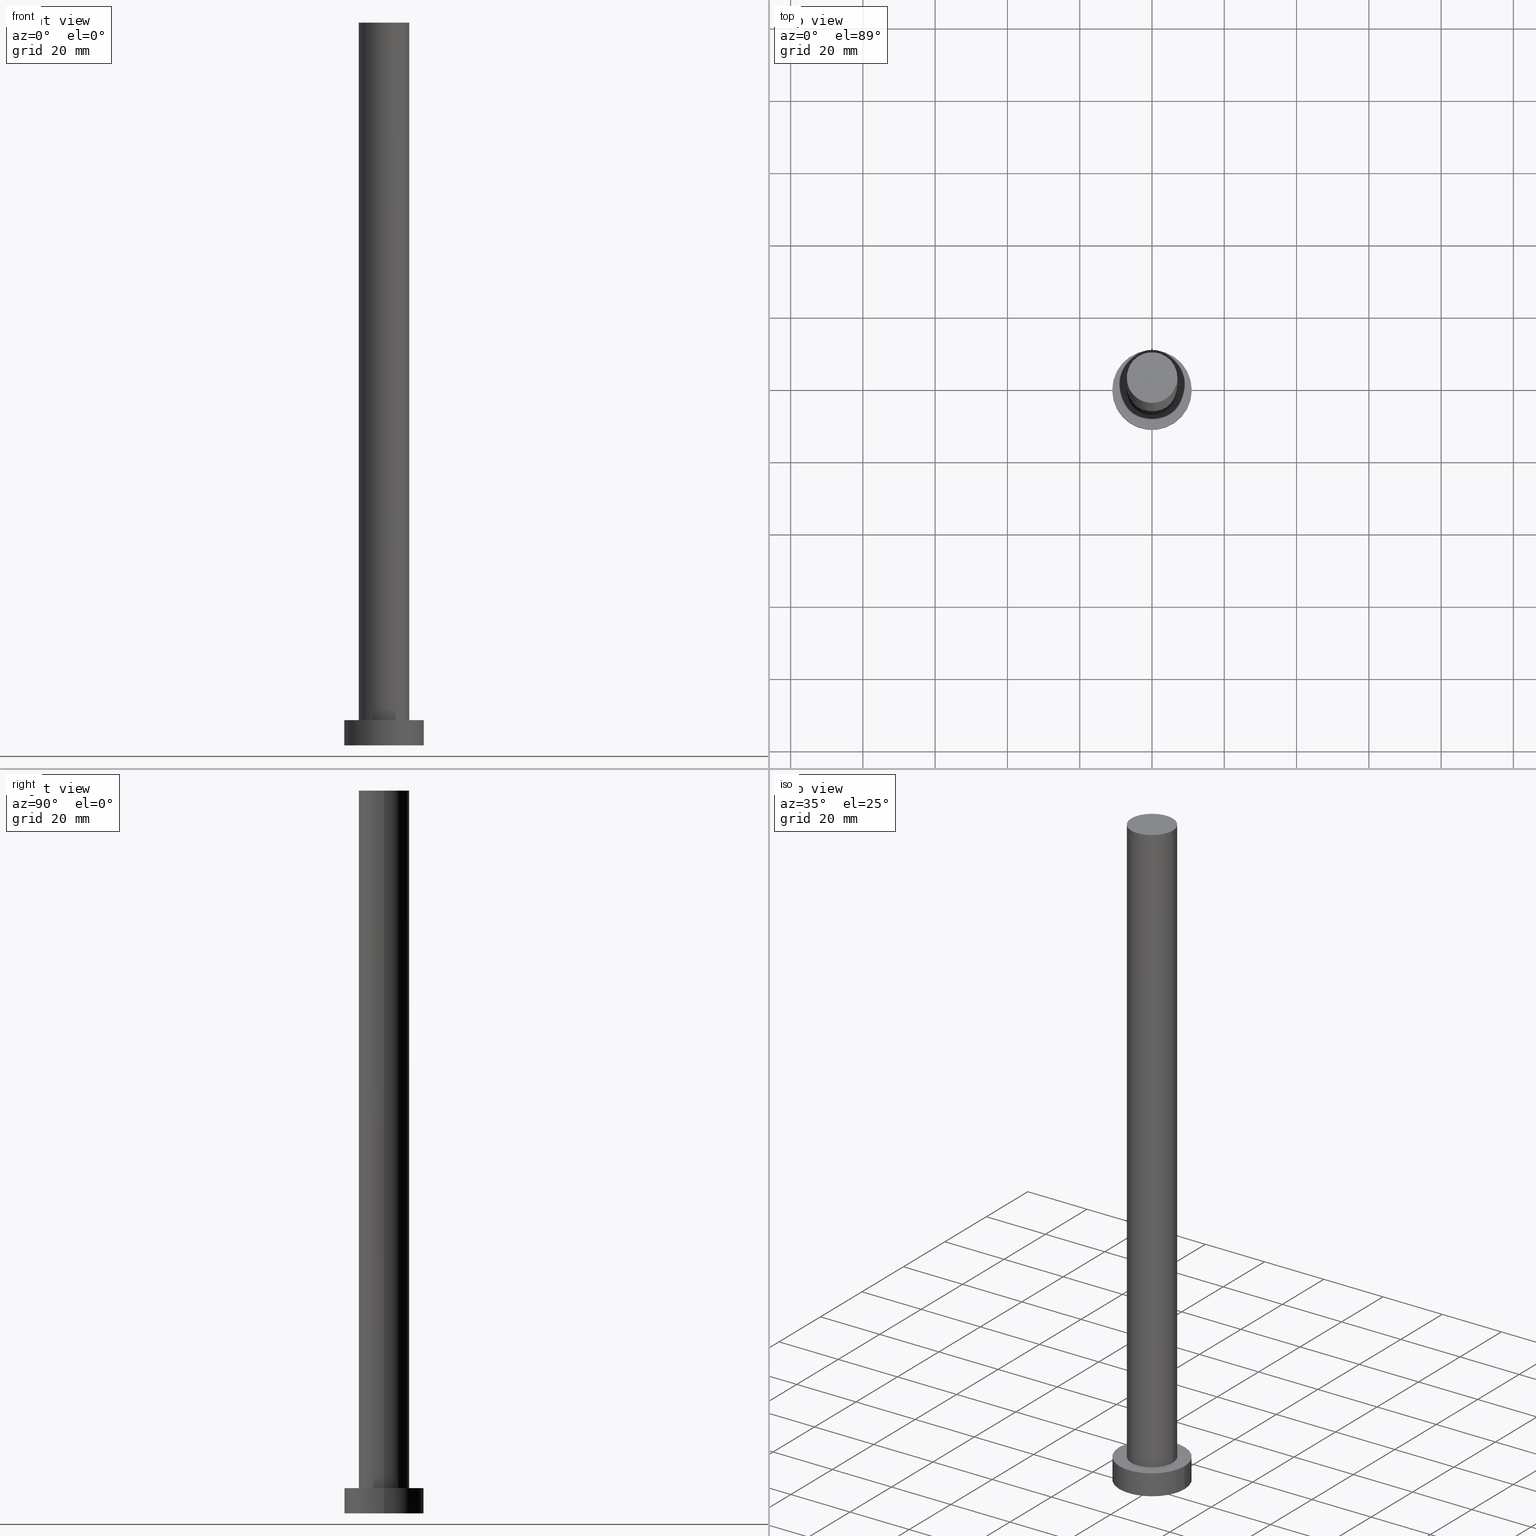
[diagram: canonical four-view strip — front | top / right | iso, engineering-drawing reading convention]
A machine part, canonical four-view strip (front | top / right | iso — engineering-drawing reading convention). The complete STEP part file that produces these views, byte-faithful:
ISO-10303-21;
HEADER;
FILE_DESCRIPTION (( 'STEP AP203' ),
    '1' );
FILE_NAME ('1ea0.STEP',
    '2023-02-13T08:55:14',
    ( '' ),
    ( '' ),
    'SwSTEP 2.0',
    'SolidWorks 2019',
    '' );
FILE_SCHEMA (( 'CONFIG_CONTROL_DESIGN' ));
ENDSEC;

DATA;
#1 = PERSON_AND_ORGANIZATION ( #171, #117 ) ;
#2 = VERTEX_POINT ( 'NONE', #188 ) ;
#3 = CIRCLE ( 'NONE', #31, 11.00000000000000000 ) ;
#4 = ORIENTED_EDGE ( 'NONE', *, *, #245, .F. ) ;
#5 = EDGE_CURVE ( 'NONE', #197, #104, #47, .T. ) ;
#6 = CARTESIAN_POINT ( 'NONE',  ( 0.000000000000000000, 0.000000000000000000, 7.000000000000000000 ) ) ;
#7 = CC_DESIGN_PERSON_AND_ORGANIZATION_ASSIGNMENT ( #73, #228, ( #252 ) ) ;
#8 = APPROVAL_PERSON_ORGANIZATION ( #56, #62, #217 ) ;
#9 = DIRECTION ( 'NONE',  ( 0.000000000000000000, 0.000000000000000000, 1.000000000000000000 ) ) ;
#10 = AXIS2_PLACEMENT_3D ( 'NONE', #180, #41, #122 ) ;
#11 = MECHANICAL_CONTEXT ( 'NONE', #202, 'mechanical' ) ;
#12 = APPROVAL_STATUS ( 'not_yet_approved' ) ;
#13 = DIRECTION ( 'NONE',  ( 0.000000000000000000, 0.000000000000000000, 1.000000000000000000 ) ) ;
#14 = AXIS2_PLACEMENT_3D ( 'NONE', #135, #9, #244 ) ;
#15 = VECTOR ( 'NONE', #215, 1000.000000000000000 ) ;
#16 = ADVANCED_FACE ( 'NONE', ( #187 ), #142, .T. ) ;
#17 = ORIENTED_EDGE ( 'NONE', *, *, #212, .F. ) ;
#18 = LOCAL_TIME ( 9, 55, 14.00000000000000000, #162 ) ;
#19 = ORIENTED_EDGE ( 'NONE', *, *, #5, .T. ) ;
#20 = APPROVAL_STATUS ( 'not_yet_approved' ) ;
#21 = AXIS2_PLACEMENT_3D ( 'NONE', #211, #225, #223 ) ;
#22 = PERSON_AND_ORGANIZATION ( #171, #117 ) ;
#23 = CARTESIAN_POINT ( 'NONE',  ( 7.000000000000000888, 8.572527594031474176E-16, 7.000000000000000000 ) ) ;
#24 = PLANE ( 'NONE',  #233 ) ;
#25 = UNCERTAINTY_MEASURE_WITH_UNIT (LENGTH_MEASURE( 1.000000000000000082E-05 ), #172, 'distance_accuracy_value', 'NONE');
#26 = CARTESIAN_POINT ( 'NONE',  ( 0.000000000000000000, 0.000000000000000000, 0.000000000000000000 ) ) ;
#27 = ADVANCED_FACE ( 'NONE', ( #64 ), #242, .F. ) ;
#28 = DATE_AND_TIME ( #210, #243 ) ;
#29 = FACE_OUTER_BOUND ( 'NONE', #139, .T. ) ;
#30 = LINE ( 'NONE', #52, #15 ) ;
#31 = AXIS2_PLACEMENT_3D ( 'NONE', #26, #143, #141 ) ;
#32 = CARTESIAN_POINT ( 'NONE',  ( 0.000000000000000000, 0.000000000000000000, 0.000000000000000000 ) ) ;
#33 = COORDINATED_UNIVERSAL_TIME_OFFSET ( 1, 0, .AHEAD. ) ;
#34 = DIRECTION ( 'NONE',  ( 1.000000000000000000, 0.000000000000000000, 0.000000000000000000 ) ) ;
#35 = AXIS2_PLACEMENT_3D ( 'NONE', #114, #13, #94 ) ;
#36 = EDGE_CURVE ( 'NONE', #232, #104, #3, .T. ) ;
#37 = CC_DESIGN_APPROVAL ( #214, ( #252 ) ) ;
#38 = CARTESIAN_POINT ( 'NONE',  ( 0.000000000000000000, 0.000000000000000000, 7.000000000000000000 ) ) ;
#39 = DIRECTION ( 'NONE',  ( 0.000000000000000000, 0.000000000000000000, 1.000000000000000000 ) ) ;
#40 = VERTEX_POINT ( 'NONE', #23 ) ;
#41 = DIRECTION ( 'NONE',  ( -0.000000000000000000, -0.000000000000000000, -1.000000000000000000 ) ) ;
#42 = ORIENTED_EDGE ( 'NONE', *, *, #127, .T. ) ;
#43 = COORDINATED_UNIVERSAL_TIME_OFFSET ( 1, 0, .AHEAD. ) ;
#44 = APPROVAL_DATE_TIME ( #28, #62 ) ;
#45 = CARTESIAN_POINT ( 'NONE',  ( 0.000000000000000000, 0.000000000000000000, 0.000000000000000000 ) ) ;
#46 = MANIFOLD_SOLID_BREP ( 'P�idat vysunut�m3', #111 ) ;
#47 = LINE ( 'NONE', #254, #96 ) ;
#48 = DESIGN_CONTEXT ( 'detailed design', #170, 'design' ) ;
#49 = ORIENTED_EDGE ( 'NONE', *, *, #229, .T. ) ;
#50 = DATE_TIME_ROLE ( 'classification_date' ) ;
#51 = LINE ( 'NONE', #194, #178 ) ;
#52 = CARTESIAN_POINT ( 'NONE',  ( 7.000000000000000888, 8.572527594031474176E-16, 200.0000000000000000 ) ) ;
#53 = DIRECTION ( 'NONE',  ( 0.000000000000000000, 0.000000000000000000, 1.000000000000000000 ) ) ;
#54 = DIRECTION ( 'NONE',  ( 0.000000000000000000, 0.000000000000000000, 1.000000000000000000 ) ) ;
#55 = CIRCLE ( 'NONE', #87, 11.00000000000000000 ) ;
#56 = PERSON_AND_ORGANIZATION ( #171, #117 ) ;
#57 = DATE_AND_TIME ( #154, #201 ) ;
#58 = APPROVAL_PERSON_ORGANIZATION ( #105, #71, #189 ) ;
#59 = ORIENTED_EDGE ( 'NONE', *, *, #181, .F. ) ;
#60 = ORIENTED_EDGE ( 'NONE', *, *, #36, .F. ) ;
#61 = FACE_OUTER_BOUND ( 'NONE', #199, .T. ) ;
#62 = APPROVAL ( #132, 'NEUR�EN�' ) ;
#63 = DATE_AND_TIME ( #102, #91 ) ;
#64 = FACE_OUTER_BOUND ( 'NONE', #108, .T. ) ;
#65 = ORIENTED_EDGE ( 'NONE', *, *, #81, .T. ) ;
#66 = PERSON_AND_ORGANIZATION_ROLE ( 'classification_officer' ) ;
#67 = CARTESIAN_POINT ( 'NONE',  ( 0.000000000000000000, 0.000000000000000000, 7.000000000000000000 ) ) ;
#68 = CARTESIAN_POINT ( 'NONE',  ( 11.00000000000000000, 1.347111479062088405E-15, 0.000000000000000000 ) ) ;
#69 = DIRECTION ( 'NONE',  ( 0.000000000000000000, 0.000000000000000000, 1.000000000000000000 ) ) ;
#70 = FACE_OUTER_BOUND ( 'NONE', #253, .T. ) ;
#71 = APPROVAL ( #20, 'NEUR�EN�' ) ;
#72 = CARTESIAN_POINT ( 'NONE',  ( -11.00000000000000000, 0.000000000000000000, 7.000000000000000000 ) ) ;
#73 = PERSON_AND_ORGANIZATION ( #171, #117 ) ;
#74 = COORDINATED_UNIVERSAL_TIME_OFFSET ( 1, 0, .AHEAD. ) ;
#75 = APPLICATION_PROTOCOL_DEFINITION ( 'international standard', 'config_control_design', 1994, #202 ) ;
#76 = CARTESIAN_POINT ( 'NONE',  ( 0.000000000000000000, 0.000000000000000000, 7.000000000000000000 ) ) ;
#77 = DATE_TIME_ROLE ( 'creation_date' ) ;
#78 = CIRCLE ( 'NONE', #226, 11.00000000000000000 ) ;
#79 = CARTESIAN_POINT ( 'NONE',  ( -11.00000000000000000, 0.000000000000000000, 7.000000000000000000 ) ) ;
#80 = CIRCLE ( 'NONE', #95, 7.000000000000000888 ) ;
#81 = EDGE_CURVE ( 'NONE', #40, #88, #158, .T. ) ;
#82 = ORIENTED_EDGE ( 'NONE', *, *, #120, .T. ) ;
#83 = CIRCLE ( 'NONE', #169, 7.000000000000000888 ) ;
#84 = SHAPE_DEFINITION_REPRESENTATION ( #235, #99 ) ;
#85 = ORIENTED_EDGE ( 'NONE', *, *, #36, .T. ) ;
#86 = ORIENTED_EDGE ( 'NONE', *, *, #155, .T. ) ;
#87 = AXIS2_PLACEMENT_3D ( 'NONE', #32, #112, #93 ) ;
#88 = VERTEX_POINT ( 'NONE', #106 ) ;
#89 = DIRECTION ( 'NONE',  ( -0.000000000000000000, -0.000000000000000000, -1.000000000000000000 ) ) ;
#90 = CC_DESIGN_APPROVAL ( #71, ( #136 ) ) ;
#91 = LOCAL_TIME ( 9, 55, 14.00000000000000000, #107 ) ;
#92 = DIRECTION ( 'NONE',  ( -0.000000000000000000, -0.000000000000000000, -1.000000000000000000 ) ) ;
#93 = DIRECTION ( 'NONE',  ( 1.000000000000000000, 0.000000000000000000, 0.000000000000000000 ) ) ;
#94 = DIRECTION ( 'NONE',  ( 1.000000000000000000, 0.000000000000000000, -0.000000000000000000 ) ) ;
#95 = AXIS2_PLACEMENT_3D ( 'NONE', #168, #131, #129 ) ;
#96 = VECTOR ( 'NONE', #161, 1000.000000000000000 ) ;
#97 = CYLINDRICAL_SURFACE ( 'NONE', #163, 7.000000000000000888 ) ;
#98 = ORIENTED_EDGE ( 'NONE', *, *, #181, .T. ) ;
#99 = ADVANCED_BREP_SHAPE_REPRESENTATION ( '1ea0', ( #46, #14 ), #249 ) ;
#100 = ORIENTED_EDGE ( 'NONE', *, *, #134, .T. ) ;
#101 = PRODUCT ( '1ea0', '1ea0', '', ( #11 ) ) ;
#102 = CALENDAR_DATE ( 2023, 13, 2 ) ;
#103 = VERTEX_POINT ( 'NONE', #190 ) ;
#104 = VERTEX_POINT ( 'NONE', #68 ) ;
#105 = PERSON_AND_ORGANIZATION ( #171, #117 ) ;
#106 = CARTESIAN_POINT ( 'NONE',  ( -7.000000000000000888, 0.000000000000000000, 7.000000000000000000 ) ) ;
#107 = COORDINATED_UNIVERSAL_TIME_OFFSET ( 1, 0, .AHEAD. ) ;
#108 = EDGE_LOOP ( 'NONE', ( #60, #147 ) ) ;
#109 = ADVANCED_FACE ( 'NONE', ( #29 ), #192, .T. ) ;
#110 =( NAMED_UNIT ( * ) SI_UNIT ( $, .STERADIAN. ) SOLID_ANGLE_UNIT ( ) );
#111 = CLOSED_SHELL ( 'NONE', ( #164, #16, #109, #241, #27, #130, #204 ) ) ;
#112 = DIRECTION ( 'NONE',  ( 0.000000000000000000, 0.000000000000000000, 1.000000000000000000 ) ) ;
#113 = DATE_AND_TIME ( #195, #166 ) ;
#114 = CARTESIAN_POINT ( 'NONE',  ( 0.000000000000000000, 0.000000000000000000, 7.000000000000000000 ) ) ;
#115 = CIRCLE ( 'NONE', #251, 7.000000000000000888 ) ;
#116 =( NAMED_UNIT ( * ) PLANE_ANGLE_UNIT ( ) SI_UNIT ( $, .RADIAN. ) );
#117 = ORGANIZATION ( 'NEUR�EN�', 'NEUR�EN�', '' ) ;
#118 = FACE_BOUND ( 'NONE', #239, .T. ) ;
#119 = CC_DESIGN_PERSON_AND_ORGANIZATION_ASSIGNMENT ( #144, #66, ( #136 ) ) ;
#120 = EDGE_CURVE ( 'NONE', #103, #2, #83, .T. ) ;
#121 = ORIENTED_EDGE ( 'NONE', *, *, #157, .F. ) ;
#122 = DIRECTION ( 'NONE',  ( -1.000000000000000000, 0.000000000000000000, 0.000000000000000000 ) ) ;
#123 = ORIENTED_EDGE ( 'NONE', *, *, #245, .T. ) ;
#124 = PERSON_AND_ORGANIZATION_ROLE ( 'creator' ) ;
#125 = SECURITY_CLASSIFICATION_LEVEL ( 'unclassified' ) ;
#126 = DIRECTION ( 'NONE',  ( 1.000000000000000000, 0.000000000000000000, -0.000000000000000000 ) ) ;
#127 = EDGE_CURVE ( 'NONE', #103, #88, #51, .T. ) ;
#128 = DIRECTION ( 'NONE',  ( -1.000000000000000000, 0.000000000000000000, 0.000000000000000000 ) ) ;
#129 = DIRECTION ( 'NONE',  ( 1.000000000000000000, 0.000000000000000000, 0.000000000000000000 ) ) ;
#130 = ADVANCED_FACE ( 'NONE', ( #227 ), #97, .T. ) ;
#131 = DIRECTION ( 'NONE',  ( 0.000000000000000000, 0.000000000000000000, 1.000000000000000000 ) ) ;
#132 = APPROVAL_STATUS ( 'not_yet_approved' ) ;
#133 = PERSON_AND_ORGANIZATION_ROLE ( 'design_owner' ) ;
#134 = EDGE_CURVE ( 'NONE', #2, #40, #30, .T. ) ;
#135 = CARTESIAN_POINT ( 'NONE',  ( 0.000000000000000000, 0.000000000000000000, 0.000000000000000000 ) ) ;
#136 = SECURITY_CLASSIFICATION ( '', '', #125 ) ;
#137 = CYLINDRICAL_SURFACE ( 'NONE', #10, 7.000000000000000888 ) ;
#138 = VERTEX_POINT ( 'NONE', #72 ) ;
#139 = EDGE_LOOP ( 'NONE', ( #224, #17, #98, #85 ) ) ;
#140 = ORIENTED_EDGE ( 'NONE', *, *, #134, .F. ) ;
#141 = DIRECTION ( 'NONE',  ( 1.000000000000000000, 0.000000000000000000, 0.000000000000000000 ) ) ;
#142 = CYLINDRICAL_SURFACE ( 'NONE', #250, 11.00000000000000000 ) ;
#143 = DIRECTION ( 'NONE',  ( 0.000000000000000000, 0.000000000000000000, 1.000000000000000000 ) ) ;
#144 = PERSON_AND_ORGANIZATION ( #171, #117 ) ;
#145 = APPROVAL_PERSON_ORGANIZATION ( #216, #214, #219 ) ;
#146 = CC_DESIGN_PERSON_AND_ORGANIZATION_ASSIGNMENT ( #174, #133, ( #101 ) ) ;
#147 = ORIENTED_EDGE ( 'NONE', *, *, #155, .F. ) ;
#148 = AXIS2_PLACEMENT_3D ( 'NONE', #6, #89, #165 ) ;
#149 = DIRECTION ( 'NONE',  ( 1.000000000000000000, 0.000000000000000000, 0.000000000000000000 ) ) ;
#150 = APPROVAL_DATE_TIME ( #113, #214 ) ;
#151 = PLANE ( 'NONE',  #35 ) ;
#152 = PRODUCT_RELATED_PRODUCT_CATEGORY ( 'detail', '', ( #101 ) ) ;
#153 = CARTESIAN_POINT ( 'NONE',  ( 0.000000000000000000, 0.000000000000000000, 200.0000000000000000 ) ) ;
#154 = CALENDAR_DATE ( 2023, 13, 2 ) ;
#155 = EDGE_CURVE ( 'NONE', #104, #232, #55, .T. ) ;
#156 = CC_DESIGN_SECURITY_CLASSIFICATION ( #136, ( #183 ) ) ;
#157 = EDGE_CURVE ( 'NONE', #197, #138, #231, .T. ) ;
#158 = CIRCLE ( 'NONE', #21, 7.000000000000000888 ) ;
#159 = ORIENTED_EDGE ( 'NONE', *, *, #81, .F. ) ;
#160 = CC_DESIGN_PERSON_AND_ORGANIZATION_ASSIGNMENT ( #22, #207, ( #183 ) ) ;
#161 = DIRECTION ( 'NONE',  ( -0.000000000000000000, -0.000000000000000000, -1.000000000000000000 ) ) ;
#162 = COORDINATED_UNIVERSAL_TIME_OFFSET ( 1, 0, .AHEAD. ) ;
#163 = AXIS2_PLACEMENT_3D ( 'NONE', #175, #247, #128 ) ;
#164 = ADVANCED_FACE ( 'NONE', ( #61 ), #137, .T. ) ;
#165 = DIRECTION ( 'NONE',  ( -1.000000000000000000, 0.000000000000000000, 0.000000000000000000 ) ) ;
#166 = LOCAL_TIME ( 9, 55, 14.00000000000000000, #33 ) ;
#167 = CARTESIAN_POINT ( 'NONE',  ( 0.000000000000000000, 0.000000000000000000, 200.0000000000000000 ) ) ;
#168 = CARTESIAN_POINT ( 'NONE',  ( 0.000000000000000000, 0.000000000000000000, 7.000000000000000000 ) ) ;
#169 = AXIS2_PLACEMENT_3D ( 'NONE', #167, #213, #149 ) ;
#170 = APPLICATION_CONTEXT ( 'configuration controlled 3d designs of mechanical parts and assemblies' ) ;
#171 = PERSON ( 'NEUR�EN�', 'NEUR�EN�', 'NEUR�EN�', ('NEUR�EN�'), ('NEUR�EN�'), ('NEUR�EN�') ) ;
#172 =( LENGTH_UNIT ( ) NAMED_UNIT ( * ) SI_UNIT ( .MILLI., .METRE. ) );
#173 = AXIS2_PLACEMENT_3D ( 'NONE', #76, #39, #255 ) ;
#174 = PERSON_AND_ORGANIZATION ( #171, #117 ) ;
#175 = CARTESIAN_POINT ( 'NONE',  ( 0.000000000000000000, 0.000000000000000000, 200.0000000000000000 ) ) ;
#176 = CC_DESIGN_DATE_AND_TIME_ASSIGNMENT ( #57, #77, ( #252 ) ) ;
#177 = ORIENTED_EDGE ( 'NONE', *, *, #212, .T. ) ;
#178 = VECTOR ( 'NONE', #92, 1000.000000000000000 ) ;
#179 = ORIENTED_EDGE ( 'NONE', *, *, #157, .T. ) ;
#180 = CARTESIAN_POINT ( 'NONE',  ( 0.000000000000000000, 0.000000000000000000, 200.0000000000000000 ) ) ;
#181 = EDGE_CURVE ( 'NONE', #138, #232, #198, .T. ) ;
#182 = ORIENTED_EDGE ( 'NONE', *, *, #229, .F. ) ;
#183 = PRODUCT_DEFINITION_FORMATION_WITH_SPECIFIED_SOURCE ( 'LIBOVOLN�', '', #101, .NOT_KNOWN. ) ;
#184 = APPROVAL_DATE_TIME ( #63, #71 ) ;
#185 = CC_DESIGN_DATE_AND_TIME_ASSIGNMENT ( #240, #50, ( #136 ) ) ;
#186 = AXIS2_PLACEMENT_3D ( 'NONE', #45, #69, #126 ) ;
#187 = FACE_OUTER_BOUND ( 'NONE', #238, .T. ) ;
#188 = CARTESIAN_POINT ( 'NONE',  ( 7.000000000000000888, 8.572527594031474176E-16, 200.0000000000000000 ) ) ;
#189 = APPROVAL_ROLE ( '' ) ;
#190 = CARTESIAN_POINT ( 'NONE',  ( -7.000000000000000888, 0.000000000000000000, 200.0000000000000000 ) ) ;
#191 = CARTESIAN_POINT ( 'NONE',  ( 0.000000000000000000, 0.000000000000000000, 200.0000000000000000 ) ) ;
#192 = CYLINDRICAL_SURFACE ( 'NONE', #148, 11.00000000000000000 ) ;
#193 = DIRECTION ( 'NONE',  ( 1.000000000000000000, 0.000000000000000000, 0.000000000000000000 ) ) ;
#194 = CARTESIAN_POINT ( 'NONE',  ( -7.000000000000000888, 0.000000000000000000, 200.0000000000000000 ) ) ;
#195 = CALENDAR_DATE ( 2023, 13, 2 ) ;
#196 = CARTESIAN_POINT ( 'NONE',  ( -11.00000000000000000, 0.000000000000000000, 0.000000000000000000 ) ) ;
#197 = VERTEX_POINT ( 'NONE', #237 ) ;
#198 = LINE ( 'NONE', #79, #208 ) ;
#199 = EDGE_LOOP ( 'NONE', ( #182, #100, #65, #220 ) ) ;
#200 = CC_DESIGN_APPROVAL ( #62, ( #183 ) ) ;
#201 = LOCAL_TIME ( 9, 55, 14.00000000000000000, #74 ) ;
#202 = APPLICATION_CONTEXT ( 'configuration controlled 3d designs of mechanical parts and assemblies' ) ;
#203 = CALENDAR_DATE ( 2023, 13, 2 ) ;
#204 = ADVANCED_FACE ( 'NONE', ( #206 ), #24, .T. ) ;
#205 = DIRECTION ( 'NONE',  ( -0.000000000000000000, -0.000000000000000000, -1.000000000000000000 ) ) ;
#206 = FACE_OUTER_BOUND ( 'NONE', #221, .T. ) ;
#207 = PERSON_AND_ORGANIZATION_ROLE ( 'design_supplier' ) ;
#208 = VECTOR ( 'NONE', #234, 1000.000000000000000 ) ;
#209 = EDGE_LOOP ( 'NONE', ( #140, #222, #42, #123 ) ) ;
#210 = CALENDAR_DATE ( 2023, 13, 2 ) ;
#211 = CARTESIAN_POINT ( 'NONE',  ( 0.000000000000000000, 0.000000000000000000, 7.000000000000000000 ) ) ;
#212 = EDGE_CURVE ( 'NONE', #138, #197, #78, .T. ) ;
#213 = DIRECTION ( 'NONE',  ( 0.000000000000000000, 0.000000000000000000, 1.000000000000000000 ) ) ;
#214 = APPROVAL ( #12, 'NEUR�EN�' ) ;
#215 = DIRECTION ( 'NONE',  ( -0.000000000000000000, -0.000000000000000000, -1.000000000000000000 ) ) ;
#216 = PERSON_AND_ORGANIZATION ( #171, #117 ) ;
#217 = APPROVAL_ROLE ( '' ) ;
#218 = CC_DESIGN_PERSON_AND_ORGANIZATION_ASSIGNMENT ( #1, #124, ( #183 ) ) ;
#219 = APPROVAL_ROLE ( '' ) ;
#220 = ORIENTED_EDGE ( 'NONE', *, *, #127, .F. ) ;
#221 = EDGE_LOOP ( 'NONE', ( #82, #49 ) ) ;
#222 = ORIENTED_EDGE ( 'NONE', *, *, #120, .F. ) ;
#223 = DIRECTION ( 'NONE',  ( 1.000000000000000000, 0.000000000000000000, 0.000000000000000000 ) ) ;
#224 = ORIENTED_EDGE ( 'NONE', *, *, #5, .F. ) ;
#225 = DIRECTION ( 'NONE',  ( 0.000000000000000000, 0.000000000000000000, 1.000000000000000000 ) ) ;
#226 = AXIS2_PLACEMENT_3D ( 'NONE', #38, #54, #193 ) ;
#227 = FACE_OUTER_BOUND ( 'NONE', #209, .T. ) ;
#228 = PERSON_AND_ORGANIZATION_ROLE ( 'creator' ) ;
#229 = EDGE_CURVE ( 'NONE', #2, #103, #115, .T. ) ;
#230 = DIRECTION ( 'NONE',  ( 1.000000000000000000, 0.000000000000000000, -0.000000000000000000 ) ) ;
#231 = CIRCLE ( 'NONE', #173, 11.00000000000000000 ) ;
#232 = VERTEX_POINT ( 'NONE', #196 ) ;
#233 = AXIS2_PLACEMENT_3D ( 'NONE', #191, #53, #230 ) ;
#234 = DIRECTION ( 'NONE',  ( -0.000000000000000000, -0.000000000000000000, -1.000000000000000000 ) ) ;
#235 = PRODUCT_DEFINITION_SHAPE ( 'NONE', 'NONE',  #252 ) ;
#236 = DIRECTION ( 'NONE',  ( -1.000000000000000000, 0.000000000000000000, 0.000000000000000000 ) ) ;
#237 = CARTESIAN_POINT ( 'NONE',  ( 11.00000000000000000, 1.347111479062088405E-15, 7.000000000000000000 ) ) ;
#238 = EDGE_LOOP ( 'NONE', ( #121, #19, #86, #59 ) ) ;
#239 = EDGE_LOOP ( 'NONE', ( #4, #159 ) ) ;
#240 = DATE_AND_TIME ( #203, #18 ) ;
#241 = ADVANCED_FACE ( 'NONE', ( #118, #70 ), #151, .T. ) ;
#242 = PLANE ( 'NONE',  #186 ) ;
#243 = LOCAL_TIME ( 9, 55, 14.00000000000000000, #43 ) ;
#244 = DIRECTION ( 'NONE',  ( 1.000000000000000000, 0.000000000000000000, 0.000000000000000000 ) ) ;
#245 = EDGE_CURVE ( 'NONE', #88, #40, #80, .T. ) ;
#246 = APPLICATION_PROTOCOL_DEFINITION ( 'international standard', 'config_control_design', 1994, #170 ) ;
#247 = DIRECTION ( 'NONE',  ( -0.000000000000000000, -0.000000000000000000, -1.000000000000000000 ) ) ;
#248 = DIRECTION ( 'NONE',  ( 0.000000000000000000, 0.000000000000000000, 1.000000000000000000 ) ) ;
#249 =( GEOMETRIC_REPRESENTATION_CONTEXT ( 3 ) GLOBAL_UNCERTAINTY_ASSIGNED_CONTEXT ( ( #25 ) ) GLOBAL_UNIT_ASSIGNED_CONTEXT ( ( #172, #116, #110 ) ) REPRESENTATION_CONTEXT ( 'NONE', 'WORKASPACE' ) );
#250 = AXIS2_PLACEMENT_3D ( 'NONE', #67, #205, #236 ) ;
#251 = AXIS2_PLACEMENT_3D ( 'NONE', #153, #248, #34 ) ;
#252 = PRODUCT_DEFINITION ( 'NEZN�M�', '', #183, #48 ) ;
#253 = EDGE_LOOP ( 'NONE', ( #177, #179 ) ) ;
#254 = CARTESIAN_POINT ( 'NONE',  ( 11.00000000000000000, 1.347111479062088405E-15, 7.000000000000000000 ) ) ;
#255 = DIRECTION ( 'NONE',  ( 1.000000000000000000, 0.000000000000000000, 0.000000000000000000 ) ) ;
ENDSEC;
END-ISO-10303-21;
